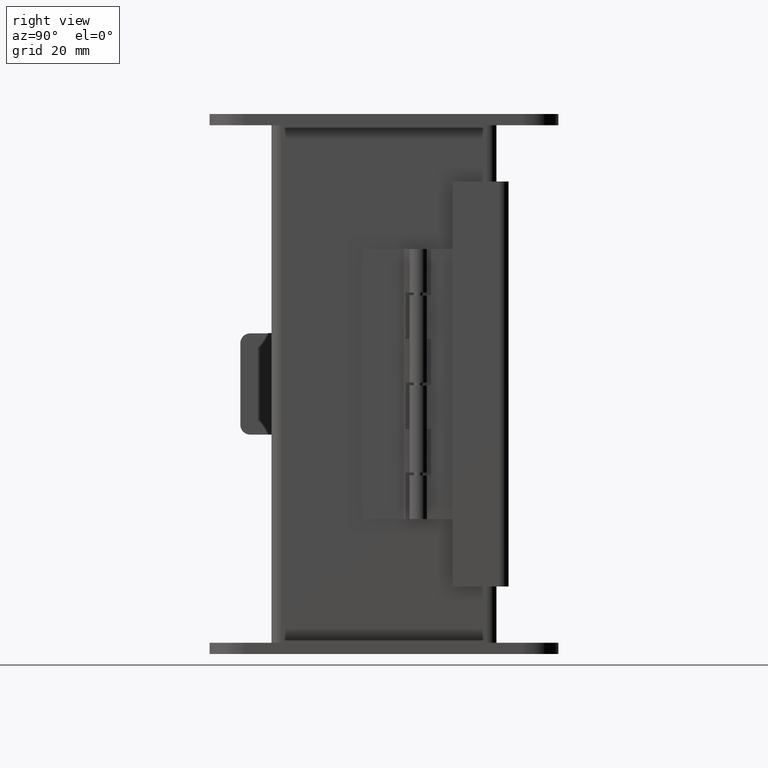
[diagram: clean part render]
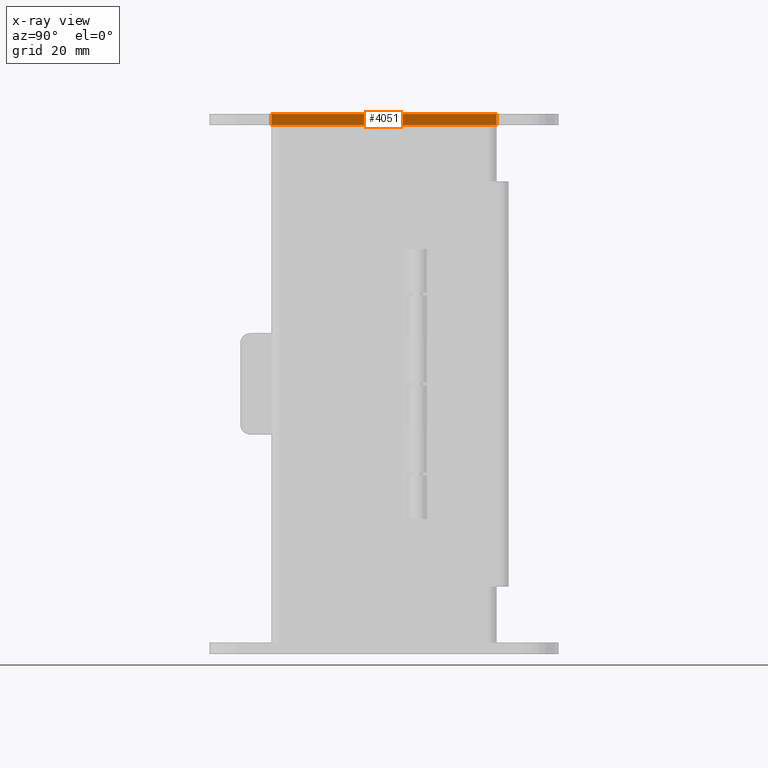
[diagram: x-ray — body ghosted, one internal face saturated and labeled with its STEP entity id]
A machine part, right view, then the same camera in x-ray: the body is ghosted and one INTERNAL B-rep face — a face not visible from any outside direction — is saturated and labeled: STEP entity #4051.
In plain terms, the highlighted planar face has unit normal (-1, 0, -0).
Its self-contained STEP definition (entity closure, byte-faithful):
#197=PLANE('',#4323);
#362=FACE_OUTER_BOUND('',#601,.T.);
#601=EDGE_LOOP('',(#2865,#2866,#2867,#2868));
#1067=LINE('',#6075,#1457);
#1068=LINE('',#6077,#1458);
#1069=LINE('',#6079,#1459);
#1070=LINE('',#6080,#1460);
#1457=VECTOR('',#4870,2.5);
#1458=VECTOR('',#4871,0.125);
#1459=VECTOR('',#4872,2.5);
#1460=VECTOR('',#4873,0.125);
#1835=VERTEX_POINT('',#6073);
#1836=VERTEX_POINT('',#6074);
#1837=VERTEX_POINT('',#6076);
#1838=VERTEX_POINT('',#6078);
#2237=EDGE_CURVE('',#1835,#1836,#1067,.T.);
#2238=EDGE_CURVE('',#1837,#1836,#1068,.T.);
#2239=EDGE_CURVE('',#1838,#1837,#1069,.T.);
#2240=EDGE_CURVE('',#1838,#1835,#1070,.T.);
#2865=ORIENTED_EDGE('',*,*,#2237,.T.);
#2866=ORIENTED_EDGE('',*,*,#2238,.F.);
#2867=ORIENTED_EDGE('',*,*,#2239,.F.);
#2868=ORIENTED_EDGE('',*,*,#2240,.T.);
#4051=ADVANCED_FACE('',(#362),#197,.T.);
#4323=AXIS2_PLACEMENT_3D('',#6072,#4868,#4869);
#4868=DIRECTION('center_axis',(-1.,-2.79741234551221E-16,0.));
#4869=DIRECTION('ref_axis',(0.,0.,1.));
#4870=DIRECTION('',(-2.79741234551221E-16,1.,0.));
#4871=DIRECTION('',(0.,0.,1.));
#4872=DIRECTION('',(-2.79741234551221E-16,1.,0.));
#4873=DIRECTION('',(0.,0.,1.));
#6072=CARTESIAN_POINT('Origin',(1.25,-1.25,0.));
#6073=CARTESIAN_POINT('',(1.25,-1.25,0.125));
#6074=CARTESIAN_POINT('',(1.25,1.25,0.125));
#6075=CARTESIAN_POINT('',(1.25,-1.25,0.125));
#6076=CARTESIAN_POINT('',(1.25,1.25,0.));
#6077=CARTESIAN_POINT('',(1.25,1.25,0.));
#6078=CARTESIAN_POINT('',(1.25,-1.25,0.));
#6079=CARTESIAN_POINT('',(1.25,-1.25,0.));
#6080=CARTESIAN_POINT('',(1.25,-1.25,0.));